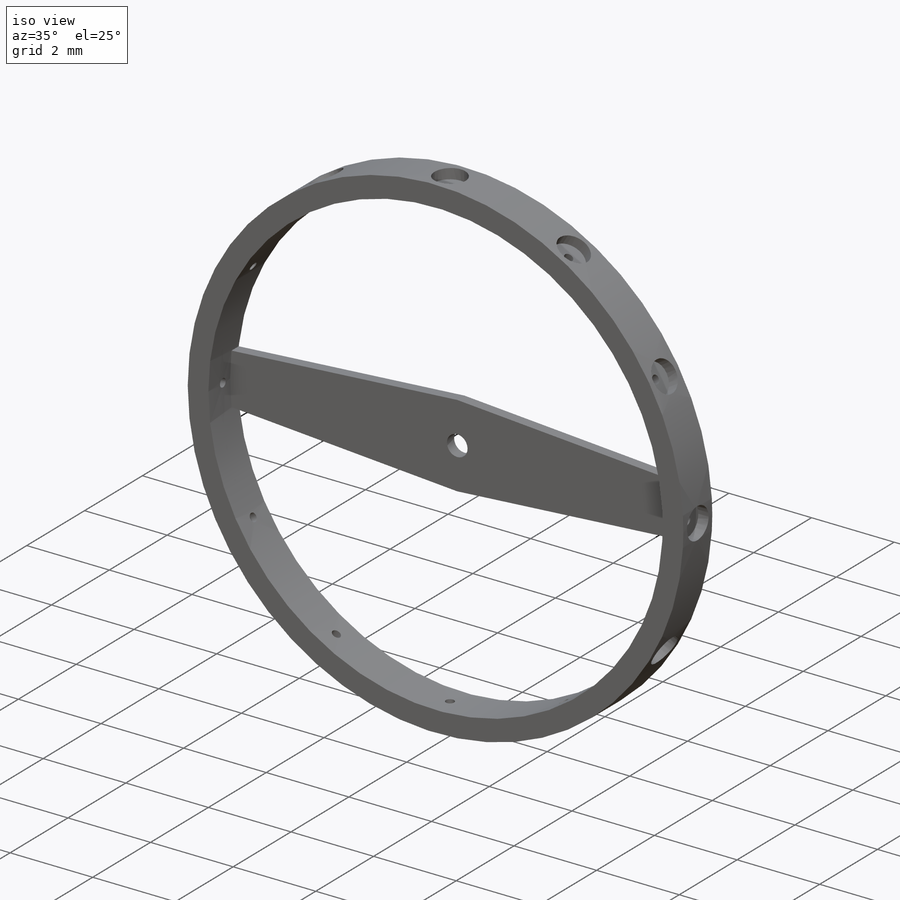
[diagram: iso view]
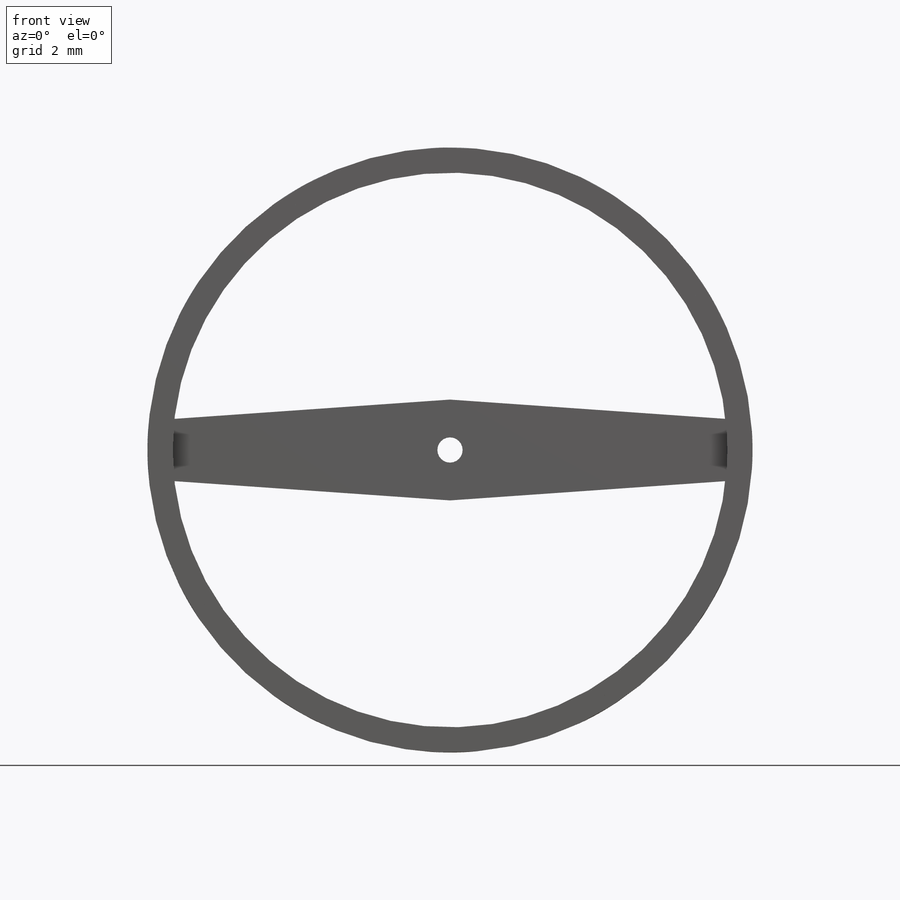
[diagram: front view]
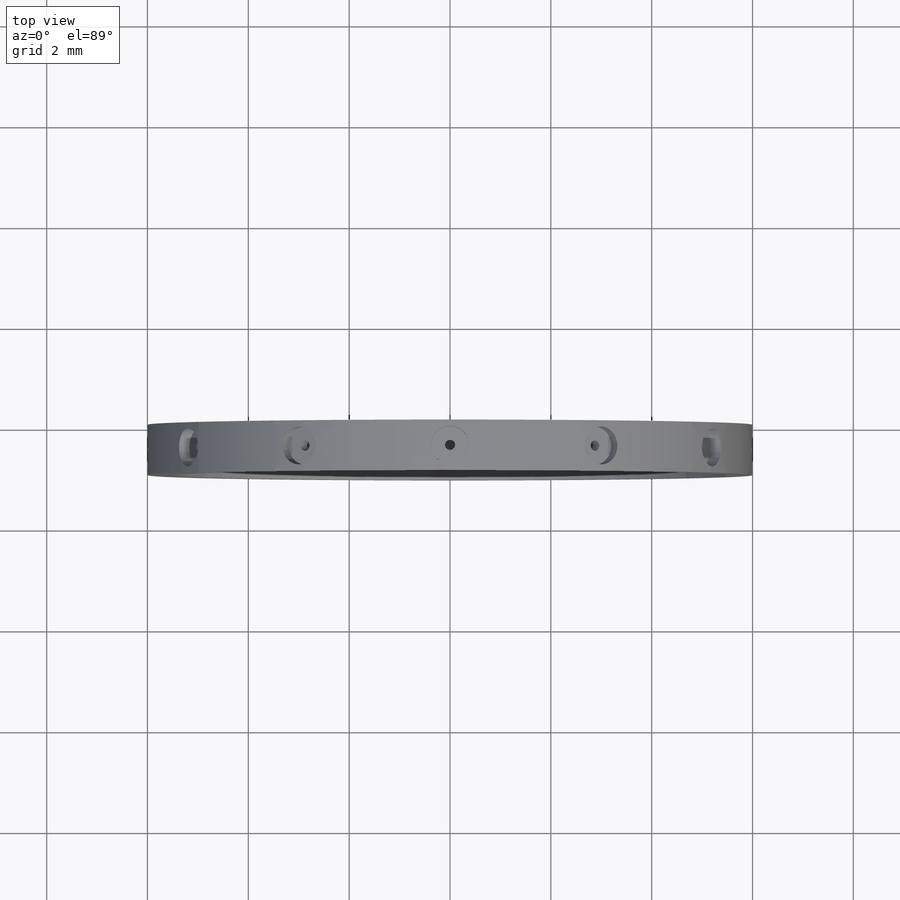
[diagram: top view]
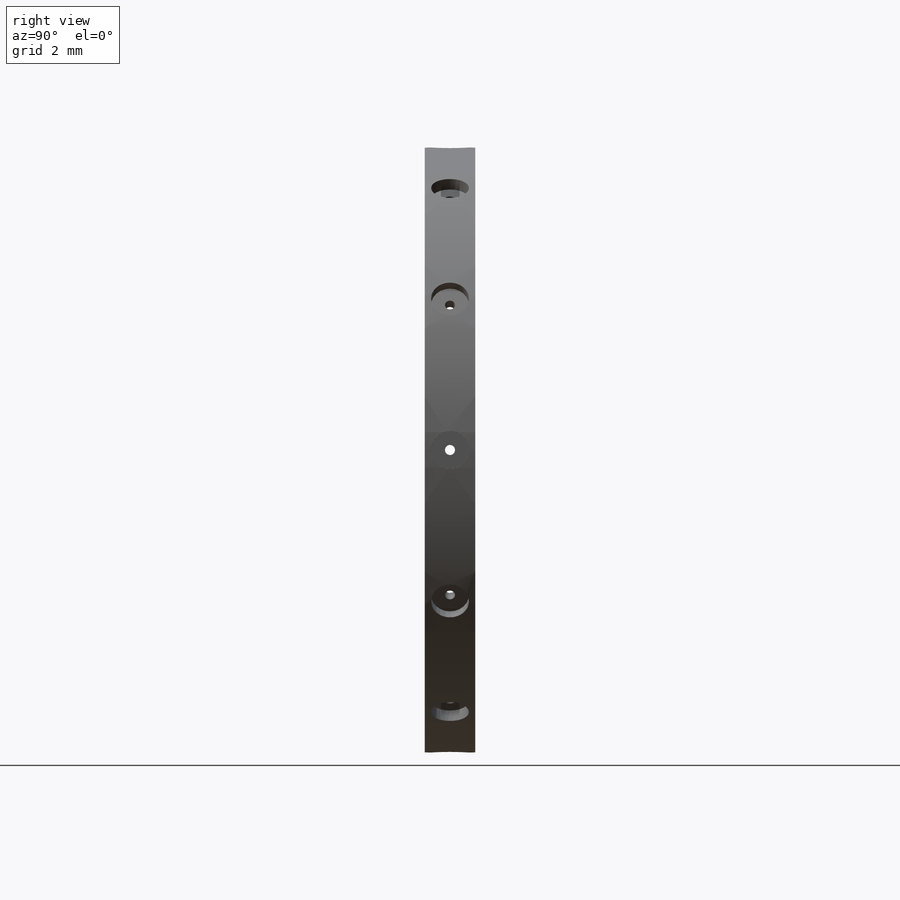
[diagram: right view]
SOLIDWORKS PART (.sldprt)
format: sldprt  version: not decoded by parser v0  size: 378,880 bytes
history: native  units: mm
features: sketch x5, cut_extrude x3, extrude x2, material x1, mirror x1, plane x1, pattern_circular x1 (+11 scaffold rows collapsed)
feature tree (25):
  scaffold x11  (default folders/planes/origin — collapsed)
  material  "Material <sin especificar>"
  sketch  "Croquis1"  dims[D1=12.0mm D2=11.0mm]
  extrude  "Saliente-Extruir1"  Depth=1mm
  sketch  "Croquis5"  dims[c1.D3=6.125mm c1.D1=2.0mm c1.D2=8.5mm c2.D2=4.0deg c2.D3=~1.147161mm c2.D1=2.0mm c3.D2=~8.271192mm c4.D2=45.0deg c4.D3=~7.481744mm c5.D3=4.0deg c5.D4=~7.156281mm c6.D4=4.0deg c7.D4=~8.271192mm c8.D4=4.0deg]
  extrude  "Saliente-Extruir2"  Depth=0.25mm
  mirror  "Simetría1"
  plane  "Plano2"  Offset=6mm
  sketch  "Croquis8"  dims[D2=0.2mm D1=0.5mm]
  cut_extrude  "Cortar-Extruir4"  Depth=1mm
  sketch  "Croquis9"  dims[D1=0.75mm]
  cut_extrude  "Cortar-Extruir5"  Depth=0.25mm
  pattern_circular  "MatrizC7"  Count=12 Angle=360deg
  sketch  "Croquis10"  dims[D1=0.5mm]
  cut_extrude  "Cortar-Extruir6"  Depth=10mm
decode coverage: 11 of 12 modeling features carry decoded parameters
note: ~ marks probable driven/reference dimensions
note: suppression state not decoded; provenance and decode notes live in map.json
